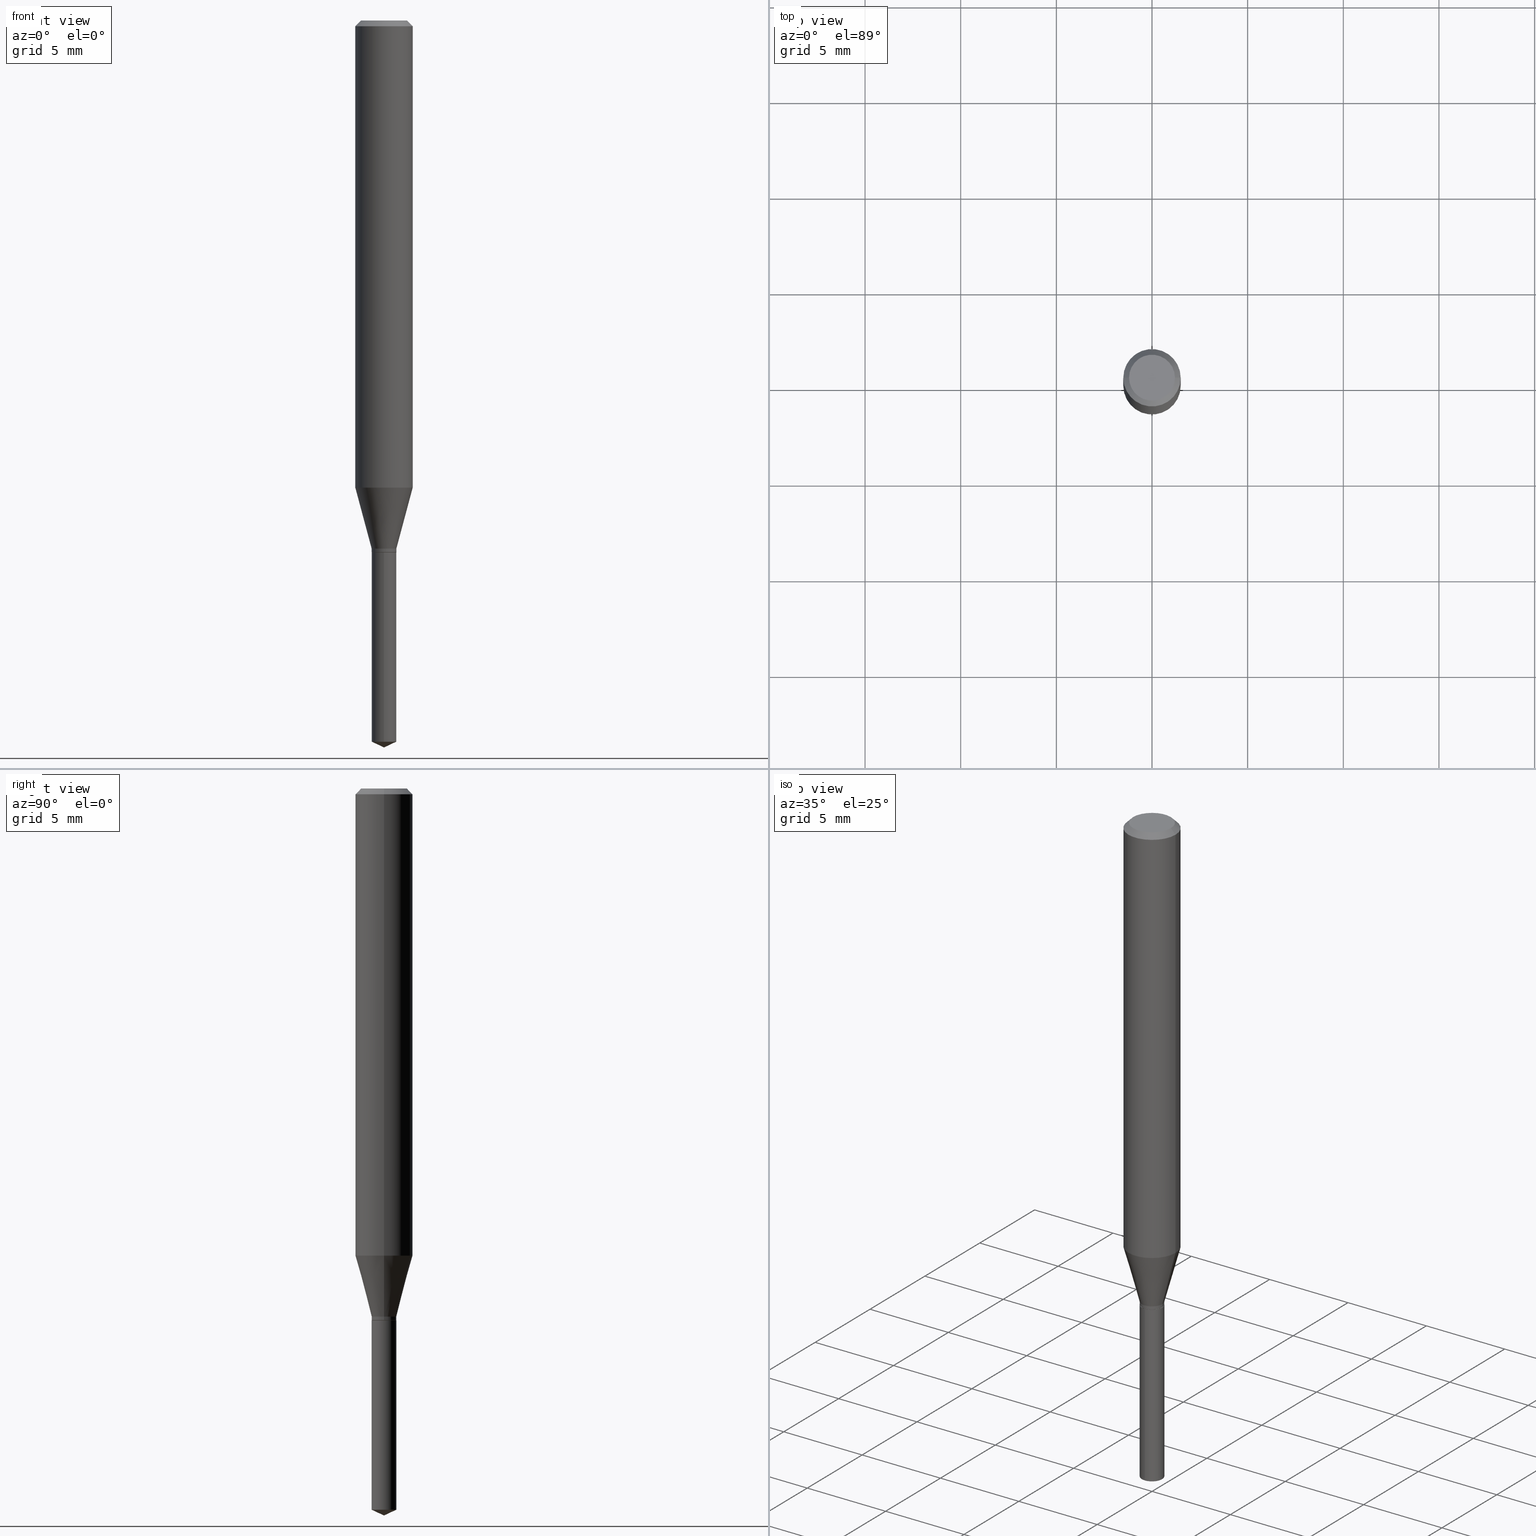
[diagram: canonical four-view strip — front | top / right | iso, engineering-drawing reading convention]
A machine part, canonical four-view strip (front | top / right | iso — engineering-drawing reading convention). The complete STEP part file that produces these views, byte-faithful:
ISO-10303-21;
HEADER;
FILE_DESCRIPTION (( 'STEP AP203' ),
    '1' );
FILE_NAME ('07515.STEP',
    '2024-04-23T22:20:57',
    ( '' ),
    ( '' ),
    'SwSTEP 2.0',
    'SolidWorks 2023',
    '' );
FILE_SCHEMA (( 'CONFIG_CONTROL_DESIGN' ));
ENDSEC;

DATA;
#1 = CARTESIAN_POINT ( 'NONE',  ( 2.676565608369631794E-29, -3.821426325363822773E-15, -1.094499999999999806 ) ) ;
#2 = EDGE_CURVE ( 'NONE', #43, #443, #195, .T. ) ;
#3 = AXIS2_PLACEMENT_3D ( 'NONE', #77, #73, #485 ) ;
#4 = VERTEX_POINT ( 'NONE', #70 ) ;
#5 = CONICAL_SURFACE ( 'NONE', #460, 0.02539999999999999897, 0.2617993877991500740 ) ;
#6 = CARTESIAN_POINT ( 'NONE',  ( -0.02539999999999999897, -3.614413212305549049E-15, -1.086899999999999755 ) ) ;
#7 = EDGE_LOOP ( 'NONE', ( #371, #386, #101, #217 ) ) ;
#8 = CARTESIAN_POINT ( 'NONE',  ( -0.05905000000000006077, 4.195754854663395916E-16, -2.904631170795524694E-30 ) ) ;
#9 = CARTESIAN_POINT ( 'NONE',  ( 2.657980045442624351E-29, -3.794891067188614341E-15, -1.086899999999999755 ) ) ;
#10 = ORIENTED_EDGE ( 'NONE', *, *, #260, .T. ) ;
#11 = EDGE_CURVE ( 'NONE', #392, #338, #190, .T. ) ;
#12 = AXIS2_PLACEMENT_3D ( 'NONE', #208, #277, #426 ) ;
#13 = PLANE ( 'NONE',  #157 ) ;
#14 = FACE_OUTER_BOUND ( 'NONE', #204, .T. ) ;
#15 = CYLINDRICAL_SURFACE ( 'NONE', #487, 0.02539999999999999897 ) ;
#16 = AXIS2_PLACEMENT_3D ( 'NONE', #361, #280, #126 ) ;
#17 = AXIS2_PLACEMENT_3D ( 'NONE', #219, #375, #26 ) ;
#18 = CARTESIAN_POINT ( 'NONE',  ( 0.05905000000000006077, -4.123439461173744764E-16, 2.879382386107503023E-30 ) ) ;
#19 = VERTEX_POINT ( 'NONE', #344 ) ;
#20 = ADVANCED_BREP_SHAPE_REPRESENTATION ( '07515', ( #351, #177, #108 ), #369 ) ;
#21 = CARTESIAN_POINT ( 'NONE',  ( -0.05904999999999999832, 3.711095515056362054E-16, -0.01181000000000007738 ) ) ;
#22 = EDGE_LOOP ( 'NONE', ( #124, #376, #296, #41 ) ) ;
#23 = CYLINDRICAL_SURFACE ( 'NONE', #140, 0.02539999999999999897 ) ;
#24 = ORIENTED_EDGE ( 'NONE', *, *, #235, .T. ) ;
#25 = EDGE_CURVE ( 'NONE', #19, #350, #82, .T. ) ;
#26 = DIRECTION ( 'NONE',  ( 1.000000000000000000, -6.982962677686266711E-15, 4.876176775795935793E-29 ) ) ;
#27 = CIRCLE ( 'NONE', #377, 0.02539999999999999897 ) ;
#28 = EDGE_LOOP ( 'NONE', ( #179, #315, #173, #482 ) ) ;
#29 = CONICAL_SURFACE ( 'NONE', #198, 0.05904999999999999832, 0.7853981633974449483 ) ;
#30 = CALENDAR_DATE ( 2024, 23, 4 ) ;
#31 = CARTESIAN_POINT ( 'NONE',  ( 3.658667988020872822E-29, -5.223602213574301462E-15, -1.496099999999999985 ) ) ;
#32 = UNCERTAINTY_MEASURE_WITH_UNIT (LENGTH_MEASURE( 1.000000000000000082E-05 ), #452, 'distance_accuracy_value', 'NONE');
#33 = APPROVAL_DATE_TIME ( #225, #237 ) ;
#34 = CARTESIAN_POINT ( 'NONE',  ( 0.02539999999999999897, -1.773672520132311721E-16, 1.238548901052167661E-30 ) ) ;
#35 = CC_DESIGN_PERSON_AND_ORGANIZATION_ASSIGNMENT ( #144, #308, ( #337 ) ) ;
#36 = DIRECTION ( 'NONE',  ( -6.982962677686265922E-15, -1.000000000000000000, 0.000000000000000000 ) ) ;
#37 = CIRCLE ( 'NONE', #322, 0.02489999999999999852 ) ;
#38 = ORGANIZATION ( 'UNSPECIFIED', 'UNSPECIFIED', '' ) ;
#39 = DATE_TIME_ROLE ( 'classification_date' ) ;
#40 = CARTESIAN_POINT ( 'NONE',  ( -0.02539999999999999897, -3.626807971058442119E-15, -1.093999999999999861 ) ) ;
#41 = ORIENTED_EDGE ( 'NONE', *, *, #161, .F. ) ;
#42 = DIRECTION ( 'NONE',  ( -2.445468806185136597E-29, 3.491481338843145583E-15, 1.000000000000000000 ) ) ;
#43 = VERTEX_POINT ( 'NONE', #149 ) ;
#44 = FACE_OUTER_BOUND ( 'NONE', #440, .T. ) ;
#45 = APPROVAL_PERSON_ORGANIZATION ( #302, #389, #390 ) ;
#46 = DIRECTION ( 'NONE',  ( -2.438088387897960049E-29, 3.491481338843145188E-15, 1.000000000000000000 ) ) ;
#47 = DIRECTION ( 'NONE',  ( 1.000000000000000000, -6.982962677686266711E-15, 4.876176775795935793E-29 ) ) ;
#48 = EDGE_CURVE ( 'NONE', #303, #272, #360, .T. ) ;
#49 = ORIENTED_EDGE ( 'NONE', *, *, #25, .F. ) ;
#50 = DIRECTION ( 'NONE',  ( 0.2588190451025213501, 1.565188264969621968E-15, 0.9659258262890682012 ) ) ;
#51 = VECTOR ( 'NONE', #247, 39.37007874015748143 ) ;
#52 = VECTOR ( 'NONE', #120, 39.37007874015748143 ) ;
#53 = DIRECTION ( 'NONE',  ( -6.982962677686268288E-15, -1.000000000000000000, 3.520397390770421921E-15 ) ) ;
#54 = EDGE_CURVE ( 'NONE', #43, #398, #442, .T. ) ;
#55 = DIRECTION ( 'NONE',  ( -2.445468806185136597E-29, 3.491481338843145583E-15, 1.000000000000000000 ) ) ;
#56 = DIRECTION ( 'NONE',  ( -2.445468806185136597E-29, 3.491481338843145583E-15, 1.000000000000000000 ) ) ;
#57 = ORIENTED_EDGE ( 'NONE', *, *, #146, .T. ) ;
#58 = AXIS2_PLACEMENT_3D ( 'NONE', #121, #278, #427 ) ;
#59 = CARTESIAN_POINT ( 'NONE',  ( 2.350869489961913671E-29, -3.356418586692996552E-15, -0.9613164903253069715 ) ) ;
#60 = ORIENTED_EDGE ( 'NONE', *, *, #380, .T. ) ;
#61 = DIRECTION ( 'NONE',  ( -0.7071067811865451302, 2.468850131082231817E-15, -0.7071067811865499042 ) ) ;
#62 = EDGE_LOOP ( 'NONE', ( #185, #212, #317, #312 ) ) ;
#63 = ADVANCED_FACE ( 'NONE', ( #314 ), #429, .T. ) ;
#64 = FACE_OUTER_BOUND ( 'NONE', #7, .T. ) ;
#65 = ORIENTED_EDGE ( 'NONE', *, *, #218, .F. ) ;
#66 = CC_DESIGN_PERSON_AND_ORGANIZATION_ASSIGNMENT ( #454, #112, ( #83 ) ) ;
#67 = PERSON_AND_ORGANIZATION_ROLE ( 'creator' ) ;
#68 = LINE ( 'NONE', #224, #51 ) ;
#69 = ADVANCED_FACE ( 'NONE', ( #425 ), #232, .T. ) ;
#70 = CARTESIAN_POINT ( 'NONE',  ( 0.02489999999999999852, -3.995302096038210840E-15, -1.094499999999999806 ) ) ;
#71 = DATE_AND_TIME ( #104, #275 ) ;
#72 = DIRECTION ( 'NONE',  ( -2.445470214571802116E-29, 3.491479321953280158E-15, 1.000000000000000000 ) ) ;
#73 = DIRECTION ( 'NONE',  ( -2.445468806185136597E-29, 3.491481338843145583E-15, 1.000000000000000000 ) ) ;
#74 = AXIS2_PLACEMENT_3D ( 'NONE', #228, #489, #152 ) ;
#75 = ORIENTED_EDGE ( 'NONE', *, *, #91, .T. ) ;
#76 = PERSON_AND_ORGANIZATION ( #191, #38 ) ;
#77 = CARTESIAN_POINT ( 'NONE',  ( 8.265746106709734507E-48, -1.180129479067563789E-33, -3.380025165646692144E-19 ) ) ;
#78 = EDGE_CURVE ( 'NONE', #4, #84, #37, .T. ) ;
#79 = ORIENTED_EDGE ( 'NONE', *, *, #421, .F. ) ;
#80 = LINE ( 'NONE', #163, #166 ) ;
#81 = FACE_OUTER_BOUND ( 'NONE', #468, .T. ) ;
#82 = CIRCLE ( 'NONE', #92, 0.05905000000000011628 ) ;
#83 = PRODUCT_DEFINITION_FORMATION_WITH_SPECIFIED_SOURCE ( 'ANY', '', #337, .NOT_KNOWN. ) ;
#84 = VERTEX_POINT ( 'NONE', #148 ) ;
#85 = DIRECTION ( 'NONE',  ( 1.000000000000000000, -6.982962677686267499E-15, 0.000000000000000000 ) ) ;
#86 = EDGE_CURVE ( 'NONE', #392, #143, #297, .T. ) ;
#87 = ORIENTED_EDGE ( 'NONE', *, *, #335, .T. ) ;
#88 = CYLINDRICAL_SURFACE ( 'NONE', #339, 0.05905000000000006077 ) ;
#89 = ORIENTED_EDGE ( 'NONE', *, *, #475, .F. ) ;
#90 = LINE ( 'NONE', #320, #307 ) ;
#91 = EDGE_CURVE ( 'NONE', #368, #443, #213, .T. ) ;
#92 = AXIS2_PLACEMENT_3D ( 'NONE', #342, #349, #453 ) ;
#93 = AXIS2_PLACEMENT_3D ( 'NONE', #59, #405, #293 ) ;
#94 = CARTESIAN_POINT ( 'NONE',  ( 2.676565608369631794E-29, -3.821426325363822773E-15, -1.094499999999999806 ) ) ;
#95 = CARTESIAN_POINT ( 'NONE',  ( -0.02539999999999999897, 1.804778548830654399E-16, -1.249409512924746078E-30 ) ) ;
#96 = CARTESIAN_POINT ( 'NONE',  ( 8.265746106709734507E-48, -1.180129479067563789E-33, -3.380025165646692144E-19 ) ) ;
#97 = ORIENTED_EDGE ( 'NONE', *, *, #455, .T. ) ;
#98 = CONICAL_SURFACE ( 'NONE', #255, 0.02539999999999999897, 0.2617993877991500740 ) ;
#99 = CARTESIAN_POINT ( 'NONE',  ( -1.773672520132044001E-16, -0.02540000000000381883, -1.094499999999999806 ) ) ;
#100 = EDGE_CURVE ( 'NONE', #398, #43, #107, .T. ) ;
#101 = ORIENTED_EDGE ( 'NONE', *, *, #11, .T. ) ;
#102 = CARTESIAN_POINT ( 'NONE',  ( 0.05904999999999999832, -4.463468013801467941E-16, -0.01181000000000007738 ) ) ;
#103 = ORIENTED_EDGE ( 'NONE', *, *, #78, .F. ) ;
#104 = CALENDAR_DATE ( 2024, 23, 4 ) ;
#105 = DIRECTION ( 'NONE',  ( -2.445468806185136597E-29, 3.491481338843145583E-15, 1.000000000000000000 ) ) ;
#106 = APPROVAL_STATUS ( 'not_yet_approved' ) ;
#107 = CIRCLE ( 'NONE', #486, 0.02539999999999999897 ) ;
#108 = AXIS2_PLACEMENT_3D ( 'NONE', #348, #313, #223 ) ;
#109 = CARTESIAN_POINT ( 'NONE',  ( -0.02489999999999999852, -3.644501184159557591E-15, -1.094499999999999806 ) ) ;
#110 = LOCAL_TIME ( 18, 20, 57.00000000000000000, #304 ) ;
#111 = CARTESIAN_POINT ( 'NONE',  ( 2.676565608369631794E-29, -3.821426325363822773E-15, -1.094499999999999806 ) ) ;
#112 = PERSON_AND_ORGANIZATION_ROLE ( 'design_supplier' ) ;
#113 = DIRECTION ( 'NONE',  ( -6.982962677686265922E-15, -1.000000000000000000, 5.377653530835164164E-15 ) ) ;
#114 = ORIENTED_EDGE ( 'NONE', *, *, #455, .F. ) ;
#115 = PERSON_AND_ORGANIZATION ( #191, #38 ) ;
#116 = DIRECTION ( 'NONE',  ( -2.445470214571802396E-29, 3.491479321953280158E-15, 1.000000000000000000 ) ) ;
#117 = AXIS2_PLACEMENT_3D ( 'NONE', #401, #282, #435 ) ;
#118 = CC_DESIGN_PERSON_AND_ORGANIZATION_ASSIGNMENT ( #115, #67, ( #154 ) ) ;
#119 = CIRCLE ( 'NONE', #93, 0.05905000000000011628 ) ;
#120 = DIRECTION ( 'NONE',  ( -2.445468806185136877E-29, 3.491481338843145188E-15, 1.000000000000000000 ) ) ;
#121 = CARTESIAN_POINT ( 'NONE',  ( 2.676565608369631794E-29, -3.821426325363822773E-15, -1.094499999999999806 ) ) ;
#122 = EDGE_CURVE ( 'NONE', #443, #368, #139, .T. ) ;
#123 = CARTESIAN_POINT ( 'NONE',  ( 0.02539999999999999897, -3.972258319201845415E-15, -1.086899999999999755 ) ) ;
#124 = ORIENTED_EDGE ( 'NONE', *, *, #146, .F. ) ;
#125 = CC_DESIGN_DATE_AND_TIME_ASSIGNMENT ( #71, #182, ( #154 ) ) ;
#126 = DIRECTION ( 'NONE',  ( -1.000000000000000000, 6.982962677686265922E-15, -4.876176775795935793E-29 ) ) ;
#127 = ORIENTED_EDGE ( 'NONE', *, *, #343, .T. ) ;
#128 = DIRECTION ( 'NONE',  ( -2.445470214571802116E-29, 3.491479321953280158E-15, 1.000000000000000000 ) ) ;
#129 = EDGE_CURVE ( 'NONE', #84, #4, #279, .T. ) ;
#130 = CARTESIAN_POINT ( 'NONE',  ( 2.657980045442624351E-29, -3.794891067188614341E-15, -1.086899999999999755 ) ) ;
#131 = AXIS2_PLACEMENT_3D ( 'NONE', #200, #128, #53 ) ;
#132 = VECTOR ( 'NONE', #258, 39.37007874015748143 ) ;
#133 = DIRECTION ( 'NONE',  ( -2.445468806185136877E-29, 3.491481338843145188E-15, 1.000000000000000000 ) ) ;
#134 = FACE_OUTER_BOUND ( 'NONE', #28, .T. ) ;
#135 = EDGE_LOOP ( 'NONE', ( #319, #57, #434, #334 ) ) ;
#136 = ADVANCED_FACE ( 'NONE', ( #391 ), #262, .T. ) ;
#137 = FACE_OUTER_BOUND ( 'NONE', #396, .T. ) ;
#138 = ORIENTED_EDGE ( 'NONE', *, *, #421, .T. ) ;
#139 = CIRCLE ( 'NONE', #422, 0.02539999999999999897 ) ;
#140 = AXIS2_PLACEMENT_3D ( 'NONE', #210, #373, #175 ) ;
#141 = DIRECTION ( 'NONE',  ( 1.000000000000000000, -6.982962677686266711E-15, 4.876176775795935793E-29 ) ) ;
#142 = APPROVAL ( #419, 'UNSPECIFIED' ) ;
#143 = VERTEX_POINT ( 'NONE', #40 ) ;
#144 = PERSON_AND_ORGANIZATION ( #191, #38 ) ;
#145 = VERTEX_POINT ( 'NONE', #31 ) ;
#146 = EDGE_CURVE ( 'NONE', #84, #143, #450, .T. ) ;
#147 = MECHANICAL_CONTEXT ( 'NONE', #365, 'mechanical' ) ;
#148 = CARTESIAN_POINT ( 'NONE',  ( -0.02489999999999999852, -3.641851956985446390E-15, -1.094499999999999806 ) ) ;
#149 = CARTESIAN_POINT ( 'NONE',  ( 1.804778548831017275E-16, 0.02539999999999480867, -1.484255785482863077 ) ) ;
#150 = CC_DESIGN_APPROVAL ( #237, ( #290 ) ) ;
#151 = PERSON_AND_ORGANIZATION_ROLE ( 'creator' ) ;
#152 = DIRECTION ( 'NONE',  ( -6.982962677686265922E-15, -1.000000000000000000, 5.377653530835164164E-15 ) ) ;
#153 = APPROVAL_DATE_TIME ( #457, #389 ) ;
#154 = PRODUCT_DEFINITION ( 'UNKNOWN', '', #83, #159 ) ;
#155 = DIRECTION ( 'NONE',  ( -0.7071067811865232589, 7.493145998870265808E-15, 0.7071067811865715536 ) ) ;
#156 = DIRECTION ( 'NONE',  ( 1.000000000000000000, -6.982962677686267499E-15, 0.000000000000000000 ) ) ;
#157 = AXIS2_PLACEMENT_3D ( 'NONE', #168, #46, #327 ) ;
#158 = EDGE_LOOP ( 'NONE', ( #294, #97, #428, #79 ) ) ;
#159 = DESIGN_CONTEXT ( 'detailed design', #199, 'design' ) ;
#160 = DIRECTION ( 'NONE',  ( -0.2588190451025213501, 5.211531920934551042E-15, 0.9659258262890682012 ) ) ;
#161 = EDGE_CURVE ( 'NONE', #143, #392, #27, .T. ) ;
#162 = VERTEX_POINT ( 'NONE', #414 ) ;
#163 = CARTESIAN_POINT ( 'NONE',  ( 0.02489999999999999852, -3.995302096038210840E-15, -1.094499999999999806 ) ) ;
#164 = DIRECTION ( 'NONE',  ( -2.445468806185136597E-29, 3.491481338843145583E-15, 1.000000000000000000 ) ) ;
#165 = CLOSED_SHELL ( 'NONE', ( #321, #283, #207, #329, #447, #470, #357, #69, #306, #246, #250, #488 ) ) ;
#166 = VECTOR ( 'NONE', #236, 39.37007874015748854 ) ;
#167 = ORIENTED_EDGE ( 'NONE', *, *, #54, .F. ) ;
#168 = CARTESIAN_POINT ( 'NONE',  ( 2.676565608369631794E-29, -3.821426325363822773E-15, -1.094499999999999806 ) ) ;
#169 = CARTESIAN_POINT ( 'NONE',  ( 0.04724000000000000421, -3.852183633974369838E-16, -3.380025165621689721E-19 ) ) ;
#170 = EDGE_CURVE ( 'NONE', #398, #368, #68, .T. ) ;
#171 = CARTESIAN_POINT ( 'NONE',  ( 2.888098660104665518E-31, -4.123439461173782112E-17, -0.01181000000000007738 ) ) ;
#172 = LOCAL_TIME ( 18, 20, 57.00000000000000000, #261 ) ;
#173 = ORIENTED_EDGE ( 'NONE', *, *, #170, .T. ) ;
#174 = ADVANCED_FACE ( 'NONE', ( #323 ), #206, .T. ) ;
#175 = DIRECTION ( 'NONE',  ( -6.982962677686265922E-15, -1.000000000000000000, 5.377653530835164164E-15 ) ) ;
#176 = VERTEX_POINT ( 'NONE', #467 ) ;
#177 = MANIFOLD_SOLID_BREP ( 'Body-Move/Copy2[2]', #165 ) ;
#178 = CARTESIAN_POINT ( 'NONE',  ( 2.657980045442624351E-29, -3.794891067188614341E-15, -1.086899999999999755 ) ) ;
#179 = ORIENTED_EDGE ( 'NONE', *, *, #2, .F. ) ;
#180 = VECTOR ( 'NONE', #50, 39.37007874015747433 ) ;
#181 = VECTOR ( 'NONE', #249, 39.37007874015748143 ) ;
#182 = DATE_TIME_ROLE ( 'creation_date' ) ;
#183 = EDGE_LOOP ( 'NONE', ( #114, #448, #138, #254 ) ) ;
#184 = SECURITY_CLASSIFICATION_LEVEL ( 'unclassified' ) ;
#185 = ORIENTED_EDGE ( 'NONE', *, *, #289, .F. ) ;
#186 = SHAPE_DEFINITION_REPRESENTATION ( #292, #20 ) ;
#187 = DIRECTION ( 'NONE',  ( -2.445468806185136877E-29, 3.491481338843145188E-15, 1.000000000000000000 ) ) ;
#188 = PERSON_AND_ORGANIZATION ( #191, #38 ) ;
#189 = CONICAL_SURFACE ( 'NONE', #58, 0.02489999999999999852, 0.7853981633974141952 ) ;
#190 = LINE ( 'NONE', #34, #221 ) ;
#191 = PERSON ( 'UNSPECIFIED', 'UNSPECIFIED', 'UNSPECIFIED', ('UNSPECIFIED'), ('UNSPECIFIED'), ('UNSPECIFIED') ) ;
#192 = PERSON_AND_ORGANIZATION ( #191, #38 ) ;
#193 = CARTESIAN_POINT ( 'NONE',  ( 2.676565608369631794E-29, -3.821426325363822773E-15, -1.094499999999999806 ) ) ;
#194 = ORIENTED_EDGE ( 'NONE', *, *, #129, .F. ) ;
#195 = LINE ( 'NONE', #384, #248 ) ;
#196 = ORIENTED_EDGE ( 'NONE', *, *, #2, .T. ) ;
#197 = DIRECTION ( 'NONE',  ( 2.445468806185136597E-29, -3.491481338843145583E-15, -1.000000000000000000 ) ) ;
#198 = AXIS2_PLACEMENT_3D ( 'NONE', #393, #197, #355 ) ;
#199 = APPLICATION_CONTEXT ( 'configuration controlled 3d designs of mechanical parts and assemblies' ) ;
#200 = CARTESIAN_POINT ( 'NONE',  ( -9.261968845786000133E-28, 1.322362114038720264E-13, 37.87397874015748300 ) ) ;
#201 = CC_DESIGN_PERSON_AND_ORGANIZATION_ASSIGNMENT ( #387, #151, ( #83 ) ) ;
#202 = FACE_OUTER_BOUND ( 'NONE', #244, .T. ) ;
#203 = DIMENSIONAL_EXPONENTS ( 1.000000000000000000, 0.000000000000000000, 0.000000000000000000, 0.000000000000000000, 0.000000000000000000, 0.000000000000000000, 0.000000000000000000 ) ;
#204 = EDGE_LOOP ( 'NONE', ( #75, #241 ) ) ;
#205 = PLANE ( 'NONE',  #16 ) ;
#206 = CONICAL_SURFACE ( 'NONE', #131, 84.42940631927510253, 1.134464013796319337 ) ;
#207 = ADVANCED_FACE ( 'NONE', ( #44 ), #88, .T. ) ;
#208 = CARTESIAN_POINT ( 'NONE',  ( 2.888098660104665518E-31, -4.123439461173782112E-17, -0.01181000000000007738 ) ) ;
#209 = DIRECTION ( 'NONE',  ( 1.000000000000000000, -6.982962677686267499E-15, 0.000000000000000000 ) ) ;
#210 = CARTESIAN_POINT ( 'NONE',  ( 2.676565608369631794E-29, -3.821426325363822773E-15, -1.094499999999999806 ) ) ;
#211 = ADVANCED_FACE ( 'NONE', ( #14 ), #356, .F. ) ;
#212 = ORIENTED_EDGE ( 'NONE', *, *, #363, .T. ) ;
#213 = CIRCLE ( 'NONE', #74, 0.02539999999999999897 ) ;
#214 = CC_DESIGN_APPROVAL ( #142, ( #83 ) ) ;
#215 = ORIENTED_EDGE ( 'NONE', *, *, #363, .F. ) ;
#216 = CARTESIAN_POINT ( 'NONE',  ( -0.05904999999999999832, -1.279251005186026858E-15, -0.01181000000000007738 ) ) ;
#217 = ORIENTED_EDGE ( 'NONE', *, *, #380, .F. ) ;
#218 = EDGE_CURVE ( 'NONE', #338, #19, #464, .T. ) ;
#219 = CARTESIAN_POINT ( 'NONE',  ( 0.000000000000000000, 0.000000000000000000, 0.000000000000000000 ) ) ;
#220 = ORIENTED_EDGE ( 'NONE', *, *, #170, .F. ) ;
#221 = VECTOR ( 'NONE', #187, 39.37007874015748143 ) ;
#222 = AXIS2_PLACEMENT_3D ( 'NONE', #9, #164, #331 ) ;
#223 = DIRECTION ( 'NONE',  ( 1.000000000000000000, 0.000000000000000000, 0.000000000000000000 ) ) ;
#224 = CARTESIAN_POINT ( 'NONE',  ( -1.773672520132044001E-16, -0.02540000000000381883, -1.094499999999999806 ) ) ;
#225 = DATE_AND_TIME ( #415, #243 ) ;
#226 = DIRECTION ( 'NONE',  ( 1.000000000000000000, -6.982962677686267499E-15, 0.000000000000000000 ) ) ;
#227 = DATE_AND_TIME ( #30, #430 ) ;
#228 = CARTESIAN_POINT ( 'NONE',  ( 2.676565608369631794E-29, -3.821426325363822773E-15, -1.094499999999999806 ) ) ;
#229 = DATE_AND_TIME ( #449, #110 ) ;
#230 = AXIS2_PLACEMENT_3D ( 'NONE', #347, #72, #36 ) ;
#231 = AXIS2_PLACEMENT_3D ( 'NONE', #171, #403, #441 ) ;
#232 = CYLINDRICAL_SURFACE ( 'NONE', #354, 0.05905000000000006077 ) ;
#233 = APPLICATION_PROTOCOL_DEFINITION ( 'international standard', 'config_control_design', 1994, #199 ) ;
#234 = DIRECTION ( 'NONE',  ( 1.000000000000000000, -6.982962677686266711E-15, 4.876176775795935793E-29 ) ) ;
#235 = EDGE_CURVE ( 'NONE', #145, #398, #433, .T. ) ;
#236 = DIRECTION ( 'NONE',  ( 0.7071067811865232589, -2.468850131082003836E-15, 0.7071067811865715536 ) ) ;
#237 = APPROVAL ( #106, 'UNSPECIFIED' ) ;
#238 = VECTOR ( 'NONE', #155, 39.37007874015748854 ) ;
#239 = CARTESIAN_POINT ( 'NONE',  ( 2.657980045442624351E-29, -3.794891067188614341E-15, -1.086899999999999755 ) ) ;
#240 = APPROVAL_PERSON_ORGANIZATION ( #188, #142, #413 ) ;
#241 = ORIENTED_EDGE ( 'NONE', *, *, #122, .T. ) ;
#242 = DIRECTION ( 'NONE',  ( -2.445468806185136597E-29, 3.491481338843145583E-15, 1.000000000000000000 ) ) ;
#243 = LOCAL_TIME ( 18, 20, 57.00000000000000000, #265 ) ;
#244 = EDGE_LOOP ( 'NONE', ( #374, #404 ) ) ;
#245 = CARTESIAN_POINT ( 'NONE',  ( 0.000000000000000000, 0.000000000000000000, 0.000000000000000000 ) ) ;
#246 = ADVANCED_FACE ( 'NONE', ( #202 ), #205, .F. ) ;
#247 = DIRECTION ( 'NONE',  ( -2.445470214571802396E-29, 3.491479321953280158E-15, 1.000000000000000000 ) ) ;
#248 = VECTOR ( 'NONE', #116, 39.37007874015748143 ) ;
#249 = DIRECTION ( 'NONE',  ( -2.445468806185136877E-29, 3.491481338843145188E-15, 1.000000000000000000 ) ) ;
#250 = ADVANCED_FACE ( 'NONE', ( #358 ), #13, .F. ) ;
#251 = CARTESIAN_POINT ( 'NONE',  ( -0.05905000000000011628, -2.936843101226656270E-15, -0.9613164903253069715 ) ) ;
#252 = ORIENTED_EDGE ( 'NONE', *, *, #335, .F. ) ;
#253 = LENGTH_MEASURE_WITH_UNIT ( LENGTH_MEASURE( 0.02539999999999999897 ), #366 );
#254 = ORIENTED_EDGE ( 'NONE', *, *, #406, .T. ) ;
#255 = AXIS2_PLACEMENT_3D ( 'NONE', #239, #242, #85 ) ;
#256 = DIRECTION ( 'NONE',  ( 1.000000000000000000, -6.982962677686267499E-15, 0.000000000000000000 ) ) ;
#257 = ORIENTED_EDGE ( 'NONE', *, *, #372, .F. ) ;
#258 = DIRECTION ( 'NONE',  ( 0.7071067811865451302, -7.319954787623248157E-15, -0.7071067811865499042 ) ) ;
#259 = ORIENTED_EDGE ( 'NONE', *, *, #91, .F. ) ;
#260 = EDGE_CURVE ( 'NONE', #176, #350, #285, .T. ) ;
#261 = COORDINATED_UNIVERSAL_TIME_OFFSET ( 5, 0, .BEHIND. ) ;
#262 = CYLINDRICAL_SURFACE ( 'NONE', #274, 0.02539999999999999897 ) ;
#263 = CLOSED_SHELL ( 'NONE', ( #136, #174, #63, #438, #211 ) ) ;
#264 = AXIS2_PLACEMENT_3D ( 'NONE', #96, #402, #411 ) ;
#265 = COORDINATED_UNIVERSAL_TIME_OFFSET ( 5, 0, .BEHIND. ) ;
#266 = CARTESIAN_POINT ( 'NONE',  ( 2.675342873966538993E-29, -3.819680584694400481E-15, -1.093999999999999861 ) ) ;
#267 = APPLICATION_PROTOCOL_DEFINITION ( 'international standard', 'config_control_design', 1994, #365 ) ;
#268 = EDGE_CURVE ( 'NONE', #145, #43, #90, .T. ) ;
#269 = DIRECTION ( 'NONE',  ( -2.445468806185136597E-29, 3.491481338843145583E-15, 1.000000000000000000 ) ) ;
#270 =( NAMED_UNIT ( * ) PLANE_ANGLE_UNIT ( ) SI_UNIT ( $, .RADIAN. ) );
#271 = DIRECTION ( 'NONE',  ( -2.445470214571802116E-29, 3.491479321953280158E-15, 1.000000000000000000 ) ) ;
#272 = VERTEX_POINT ( 'NONE', #169 ) ;
#273 = COORDINATED_UNIVERSAL_TIME_OFFSET ( 5, 0, .BEHIND. ) ;
#274 = AXIS2_PLACEMENT_3D ( 'NONE', #193, #271, #458 ) ;
#275 = LOCAL_TIME ( 18, 20, 57.00000000000000000, #273 ) ;
#276 = CARTESIAN_POINT ( 'NONE',  ( -9.261968845786000133E-28, 1.322362114038720264E-13, 37.87397874015748300 ) ) ;
#277 = DIRECTION ( 'NONE',  ( 2.445468806185136597E-29, -3.491481338843145583E-15, -1.000000000000000000 ) ) ;
#278 = DIRECTION ( 'NONE',  ( -2.445468806185136597E-29, 3.491481338843145583E-15, 1.000000000000000000 ) ) ;
#279 = CIRCLE ( 'NONE', #400, 0.02489999999999999852 ) ;
#280 = DIRECTION ( 'NONE',  ( 2.438088387897960049E-29, -3.491481338843145188E-15, -1.000000000000000000 ) ) ;
#281 = VECTOR ( 'NONE', #160, 39.37007874015747433 ) ;
#282 = DIRECTION ( 'NONE',  ( 2.445470214571801836E-29, -3.491479321953280158E-15, -1.000000000000000000 ) ) ;
#283 = ADVANCED_FACE ( 'NONE', ( #397 ), #408, .T. ) ;
#284 = ORIENTED_EDGE ( 'NONE', *, *, #86, .T. ) ;
#285 = LINE ( 'NONE', #6, #281 ) ;
#286 = DIRECTION ( 'NONE',  ( -2.445468806185136597E-29, 3.491481338843145583E-15, 1.000000000000000000 ) ) ;
#287 = AXIS2_PLACEMENT_3D ( 'NONE', #276, #418, #309 ) ;
#288 = VECTOR ( 'NONE', #61, 39.37007874015748143 ) ;
#289 = EDGE_CURVE ( 'NONE', #350, #410, #461, .T. ) ;
#290 = SECURITY_CLASSIFICATION ( '', '', #184 ) ;
#291 = APPROVAL_PERSON_ORGANIZATION ( #192, #237, #382 ) ;
#292 = PRODUCT_DEFINITION_SHAPE ( 'NONE', 'NONE',  #154 ) ;
#293 = DIRECTION ( 'NONE',  ( 1.000000000000000000, -6.982962677686266711E-15, 0.000000000000000000 ) ) ;
#294 = ORIENTED_EDGE ( 'NONE', *, *, #462, .F. ) ;
#295 = CARTESIAN_POINT ( 'NONE',  ( 0.02539999999999999897, -3.972258319201845415E-15, -1.086899999999999755 ) ) ;
#296 = ORIENTED_EDGE ( 'NONE', *, *, #299, .T. ) ;
#297 = CIRCLE ( 'NONE', #472, 0.02539999999999999897 ) ;
#298 = CARTESIAN_POINT ( 'NONE',  ( 2.888098660104665518E-31, -4.123439461173782112E-17, -0.01181000000000007738 ) ) ;
#299 = EDGE_CURVE ( 'NONE', #4, #392, #80, .T. ) ;
#300 = EDGE_LOOP ( 'NONE', ( #412, #60, #325, #215 ) ) ;
#301 = CC_DESIGN_SECURITY_CLASSIFICATION ( #290, ( #83 ) ) ;
#302 = PERSON_AND_ORGANIZATION ( #191, #38 ) ;
#303 = VERTEX_POINT ( 'NONE', #318 ) ;
#304 = COORDINATED_UNIVERSAL_TIME_OFFSET ( 5, 0, .BEHIND. ) ;
#305 = CARTESIAN_POINT ( 'NONE',  ( 2.675342873966538993E-29, -3.819680584694400481E-15, -1.093999999999999861 ) ) ;
#306 = ADVANCED_FACE ( 'NONE', ( #431 ), #29, .T. ) ;
#307 = VECTOR ( 'NONE', #469, 39.37007874015748143 ) ;
#308 = PERSON_AND_ORGANIZATION_ROLE ( 'design_owner' ) ;
#309 = DIRECTION ( 'NONE',  ( -6.982962677686268288E-15, -1.000000000000000000, 3.520397390770421921E-15 ) ) ;
#310 = PRODUCT_RELATED_PRODUCT_CATEGORY ( 'detail', '', ( #337 ) ) ;
#311 = DIRECTION ( 'NONE',  ( -2.445468806185136597E-29, 3.491481338843145583E-15, 1.000000000000000000 ) ) ;
#312 = ORIENTED_EDGE ( 'NONE', *, *, #406, .F. ) ;
#313 = DIRECTION ( 'NONE',  ( 0.000000000000000000, 0.000000000000000000, 1.000000000000000000 ) ) ;
#314 = FACE_OUTER_BOUND ( 'NONE', #446, .T. ) ;
#315 = ORIENTED_EDGE ( 'NONE', *, *, #54, .T. ) ;
#316 = DIRECTION ( 'NONE',  ( 1.000000000000000000, -6.982962677686267499E-15, 0.000000000000000000 ) ) ;
#317 = ORIENTED_EDGE ( 'NONE', *, *, #475, .T. ) ;
#318 = CARTESIAN_POINT ( 'NONE',  ( -0.04724000000000000421, 3.504923541997677355E-16, -3.380025165670481712E-19 ) ) ;
#319 = ORIENTED_EDGE ( 'NONE', *, *, #78, .T. ) ;
#320 = CARTESIAN_POINT ( 'NONE',  ( 3.658668015054778287E-29, -5.223602213574301462E-15, -1.496099999999999985 ) ) ;
#321 = ADVANCED_FACE ( 'NONE', ( #463 ), #189, .T. ) ;
#322 = AXIS2_PLACEMENT_3D ( 'NONE', #111, #490, #156 ) ;
#323 = FACE_OUTER_BOUND ( 'NONE', #340, .T. ) ;
#324 = CIRCLE ( 'NONE', #231, 0.05904999999999999832 ) ;
#325 = ORIENTED_EDGE ( 'NONE', *, *, #218, .T. ) ;
#326 = CC_DESIGN_DATE_AND_TIME_ASSIGNMENT ( #229, #39, ( #290 ) ) ;
#327 = DIRECTION ( 'NONE',  ( 1.000000000000000000, -6.982962677686265922E-15, 4.876176775795935793E-29 ) ) ;
#328 = FACE_OUTER_BOUND ( 'NONE', #300, .T. ) ;
#329 = ADVANCED_FACE ( 'NONE', ( #81 ), #98, .T. ) ;
#330 = CARTESIAN_POINT ( 'NONE',  ( 0.02539999999999999897, -3.997047836707632343E-15, -1.093999999999999861 ) ) ;
#331 = DIRECTION ( 'NONE',  ( 1.000000000000000000, -6.982962677686267499E-15, 0.000000000000000000 ) ) ;
#332 = EDGE_LOOP ( 'NONE', ( #103, #194 ) ) ;
#333 = DIRECTION ( 'NONE',  ( -2.445468806185136597E-29, 3.491481338843145583E-15, 1.000000000000000000 ) ) ;
#334 = ORIENTED_EDGE ( 'NONE', *, *, #299, .F. ) ;
#335 = EDGE_CURVE ( 'NONE', #338, #176, #437, .T. ) ;
#336 = DIRECTION ( 'NONE',  ( 1.000000000000000000, -6.982962677686266711E-15, 0.000000000000000000 ) ) ;
#337 = PRODUCT ( '07515', '07515', '', ( #147 ) ) ;
#338 = VERTEX_POINT ( 'NONE', #295 ) ;
#339 = AXIS2_PLACEMENT_3D ( 'NONE', #245, #395, #47 ) ;
#340 = EDGE_LOOP ( 'NONE', ( #359, #481, #423 ) ) ;
#341 = APPROVAL_DATE_TIME ( #227, #142 ) ;
#342 = CARTESIAN_POINT ( 'NONE',  ( 2.350869489961913671E-29, -3.356418586692996552E-15, -0.9613164903253069715 ) ) ;
#343 = EDGE_CURVE ( 'NONE', #143, #176, #478, .T. ) ;
#344 = CARTESIAN_POINT ( 'NONE',  ( 0.05905000000000011628, -3.768762532810371078E-15, -0.9613164903253069715 ) ) ;
#345 = AXIS2_PLACEMENT_3D ( 'NONE', #298, #56, #336 ) ;
#346 = CALENDAR_DATE ( 2024, 23, 4 ) ;
#347 = CARTESIAN_POINT ( 'NONE',  ( 3.629701772725010767E-29, -5.182250590988897137E-15, -1.484255785482863077 ) ) ;
#348 = CARTESIAN_POINT ( 'NONE',  ( 0.000000000000000000, 0.000000000000000000, 0.000000000000000000 ) ) ;
#349 = DIRECTION ( 'NONE',  ( -2.445468806185136597E-29, 3.491481338843145583E-15, 1.000000000000000000 ) ) ;
#350 = VERTEX_POINT ( 'NONE', #251 ) ;
#351 = MANIFOLD_SOLID_BREP ( 'Body-Move/Copy2[1]', #263 ) ;
#352 = DIRECTION ( 'NONE',  ( 1.000000000000000000, -6.982962677686267499E-15, 0.000000000000000000 ) ) ;
#353 = ORIENTED_EDGE ( 'NONE', *, *, #268, .F. ) ;
#354 = AXIS2_PLACEMENT_3D ( 'NONE', #381, #311, #234 ) ;
#355 = DIRECTION ( 'NONE',  ( -1.000000000000000000, 6.982962677686266711E-15, 0.000000000000000000 ) ) ;
#356 = PLANE ( 'NONE',  #117 ) ;
#357 = ADVANCED_FACE ( 'NONE', ( #328 ), #5, .T. ) ;
#358 = FACE_OUTER_BOUND ( 'NONE', #332, .T. ) ;
#359 = ORIENTED_EDGE ( 'NONE', *, *, #235, .F. ) ;
#360 = CIRCLE ( 'NONE', #3, 0.04724000000000000421 ) ;
#361 = CARTESIAN_POINT ( 'NONE',  ( 4.132873053354867254E-48, -5.900647395337818946E-34, -1.690012582823346072E-19 ) ) ;
#362 = VECTOR ( 'NONE', #133, 39.37007874015748143 ) ;
#363 = EDGE_CURVE ( 'NONE', #350, #19, #119, .T. ) ;
#364 = DIRECTION ( 'NONE',  ( -6.328713451373385156E-15, -0.9063077870366507138, 0.4226182617406979425 ) ) ;
#365 = APPLICATION_CONTEXT ( 'configuration controlled 3d designs of mechanical parts and assemblies' ) ;
#366 =( LENGTH_UNIT ( ) NAMED_UNIT ( * ) SI_UNIT ( $, .METRE. ) );
#367 = DIRECTION ( 'NONE',  ( -2.445468806185136597E-29, 3.491481338843145583E-15, 1.000000000000000000 ) ) ;
#368 = VERTEX_POINT ( 'NONE', #99 ) ;
#369 =( GEOMETRIC_REPRESENTATION_CONTEXT ( 3 ) GLOBAL_UNCERTAINTY_ASSIGNED_CONTEXT ( ( #32 ) ) GLOBAL_UNIT_ASSIGNED_CONTEXT ( ( #452, #270, #385 ) ) REPRESENTATION_CONTEXT ( 'NONE', 'WORKASPACE' ) );
#370 = CYLINDRICAL_SURFACE ( 'NONE', #17, 0.02539999999999999897 ) ;
#371 = ORIENTED_EDGE ( 'NONE', *, *, #343, .F. ) ;
#372 = EDGE_CURVE ( 'NONE', #162, #410, #324, .T. ) ;
#373 = DIRECTION ( 'NONE',  ( -2.445470214571802116E-29, 3.491479321953280158E-15, 1.000000000000000000 ) ) ;
#374 = ORIENTED_EDGE ( 'NONE', *, *, #48, .T. ) ;
#375 = DIRECTION ( 'NONE',  ( -2.445468806185136597E-29, 3.491481338843145583E-15, 1.000000000000000000 ) ) ;
#376 = ORIENTED_EDGE ( 'NONE', *, *, #129, .T. ) ;
#377 = AXIS2_PLACEMENT_3D ( 'NONE', #266, #42, #316 ) ;
#378 = CIRCLE ( 'NONE', #473, 0.02539999999999999897 ) ;
#379 = COORDINATED_UNIVERSAL_TIME_OFFSET ( 5, 0, .BEHIND. ) ;
#380 = EDGE_CURVE ( 'NONE', #176, #338, #378, .T. ) ;
#381 = CARTESIAN_POINT ( 'NONE',  ( 0.000000000000000000, 0.000000000000000000, 0.000000000000000000 ) ) ;
#382 = APPROVAL_ROLE ( '' ) ;
#383 = CC_DESIGN_PERSON_AND_ORGANIZATION_ASSIGNMENT ( #76, #483, ( #290 ) ) ;
#384 = CARTESIAN_POINT ( 'NONE',  ( 1.804778548830921625E-16, 0.02539999999999617911, -1.094500000000000028 ) ) ;
#385 =( NAMED_UNIT ( * ) SI_UNIT ( $, .STERADIAN. ) SOLID_ANGLE_UNIT ( ) );
#386 = ORIENTED_EDGE ( 'NONE', *, *, #161, .T. ) ;
#387 = PERSON_AND_ORGANIZATION ( #191, #38 ) ;
#388 = CARTESIAN_POINT ( 'NONE',  ( 3.629701772725010767E-29, -5.182250590988897137E-15, -1.484255785482863077 ) ) ;
#389 = APPROVAL ( #417, 'UNSPECIFIED' ) ;
#390 = APPROVAL_ROLE ( '' ) ;
#391 = FACE_OUTER_BOUND ( 'NONE', #477, .T. ) ;
#392 = VERTEX_POINT ( 'NONE', #330 ) ;
#393 = CARTESIAN_POINT ( 'NONE',  ( 2.888098660104665518E-31, -4.123439461173782112E-17, -0.01181000000000007738 ) ) ;
#394 = CIRCLE ( 'NONE', #264, 0.04724000000000000421 ) ;
#395 = DIRECTION ( 'NONE',  ( -2.445468806185136597E-29, 3.491481338843145583E-15, 1.000000000000000000 ) ) ;
#396 = EDGE_LOOP ( 'NONE', ( #284, #127, #252, #465 ) ) ;
#397 = FACE_OUTER_BOUND ( 'NONE', #158, .T. ) ;
#398 = VERTEX_POINT ( 'NONE', #471 ) ;
#399 = CARTESIAN_POINT ( 'NONE',  ( 3.658664905062460986E-29, -5.223606628546217219E-15, -1.496099999999999985 ) ) ;
#400 = AXIS2_PLACEMENT_3D ( 'NONE', #484, #105, #226 ) ;
#401 = CARTESIAN_POINT ( 'NONE',  ( 2.676565608369631794E-29, -3.821426325363822773E-15, -1.094499999999999806 ) ) ;
#402 = DIRECTION ( 'NONE',  ( -2.445468806185136597E-29, 3.491481338843145583E-15, 1.000000000000000000 ) ) ;
#403 = DIRECTION ( 'NONE',  ( -2.445468806185136597E-29, 3.491481338843145583E-15, 1.000000000000000000 ) ) ;
#404 = ORIENTED_EDGE ( 'NONE', *, *, #462, .T. ) ;
#405 = DIRECTION ( 'NONE',  ( -2.445468806185136597E-29, 3.491481338843145583E-15, 1.000000000000000000 ) ) ;
#406 = EDGE_CURVE ( 'NONE', #410, #162, #444, .T. ) ;
#407 = ORIENTED_EDGE ( 'NONE', *, *, #100, .T. ) ;
#408 = CONICAL_SURFACE ( 'NONE', #12, 0.05904999999999999832, 0.7853981633974449483 ) ;
#409 = DIRECTION ( 'NONE',  ( 1.000000000000000000, -6.982962677686267499E-15, 0.000000000000000000 ) ) ;
#410 = VERTEX_POINT ( 'NONE', #216 ) ;
#411 = DIRECTION ( 'NONE',  ( 1.000000000000000000, -6.982962677686266711E-15, 4.876185090822587894E-29 ) ) ;
#412 = ORIENTED_EDGE ( 'NONE', *, *, #260, .F. ) ;
#413 = APPROVAL_ROLE ( '' ) ;
#414 = CARTESIAN_POINT ( 'NONE',  ( 0.05904999999999999832, -4.535783407291118600E-16, -0.01181000000000007738 ) ) ;
#415 = CALENDAR_DATE ( 2024, 23, 4 ) ;
#416 = DIRECTION ( 'NONE',  ( -2.445470214571802116E-29, 3.491479321953280158E-15, 1.000000000000000000 ) ) ;
#417 = APPROVAL_STATUS ( 'not_yet_approved' ) ;
#418 = DIRECTION ( 'NONE',  ( -2.445470214571802116E-29, 3.491479321953280158E-15, 1.000000000000000000 ) ) ;
#419 = APPROVAL_STATUS ( 'not_yet_approved' ) ;
#420 = DIRECTION ( 'NONE',  ( -2.445470214571802116E-29, 3.491479321953280158E-15, 1.000000000000000000 ) ) ;
#421 = EDGE_CURVE ( 'NONE', #303, #410, #439, .T. ) ;
#422 = AXIS2_PLACEMENT_3D ( 'NONE', #1, #416, #113 ) ;
#423 = ORIENTED_EDGE ( 'NONE', *, *, #100, .F. ) ;
#424 = AXIS2_PLACEMENT_3D ( 'NONE', #94, #55, #209 ) ;
#425 = FACE_OUTER_BOUND ( 'NONE', #62, .T. ) ;
#426 = DIRECTION ( 'NONE',  ( -1.000000000000000000, 6.982962677686266711E-15, 0.000000000000000000 ) ) ;
#427 = DIRECTION ( 'NONE',  ( 1.000000000000000000, -6.982962677686267499E-15, 0.000000000000000000 ) ) ;
#428 = ORIENTED_EDGE ( 'NONE', *, *, #372, .T. ) ;
#429 = CONICAL_SURFACE ( 'NONE', #287, 84.42940631927510253, 1.134464013796319337 ) ;
#430 = LOCAL_TIME ( 18, 20, 57.00000000000000000, #379 ) ;
#431 = FACE_OUTER_BOUND ( 'NONE', #183, .T. ) ;
#432 = ORIENTED_EDGE ( 'NONE', *, *, #289, .T. ) ;
#433 = LINE ( 'NONE', #399, #459 ) ;
#434 = ORIENTED_EDGE ( 'NONE', *, *, #86, .F. ) ;
#435 = DIRECTION ( 'NONE',  ( 6.982962677686265922E-15, 1.000000000000000000, -3.491479321953280158E-15 ) ) ;
#436 = LINE ( 'NONE', #18, #362 ) ;
#437 = CIRCLE ( 'NONE', #222, 0.02539999999999999897 ) ;
#438 = ADVANCED_FACE ( 'NONE', ( #134 ), #23, .T. ) ;
#439 = LINE ( 'NONE', #21, #288 ) ;
#440 = EDGE_LOOP ( 'NONE', ( #479, #432, #257, #89 ) ) ;
#441 = DIRECTION ( 'NONE',  ( 1.000000000000000000, -6.982962677686266711E-15, 0.000000000000000000 ) ) ;
#442 = CIRCLE ( 'NONE', #230, 0.02539999999999999897 ) ;
#443 = VERTEX_POINT ( 'NONE', #476 ) ;
#444 = CIRCLE ( 'NONE', #345, 0.05904999999999999832 ) ;
#445 = LINE ( 'NONE', #102, #132 ) ;
#446 = EDGE_LOOP ( 'NONE', ( #353, #24, #167 ) ) ;
#447 = ADVANCED_FACE ( 'NONE', ( #137 ), #15, .T. ) ;
#448 = ORIENTED_EDGE ( 'NONE', *, *, #48, .F. ) ;
#449 = CALENDAR_DATE ( 2024, 23, 4 ) ;
#450 = LINE ( 'NONE', #109, #238 ) ;
#451 = CC_DESIGN_APPROVAL ( #389, ( #154 ) ) ;
#452 =( CONVERSION_BASED_UNIT ( 'INCH', #253 ) LENGTH_UNIT ( ) NAMED_UNIT ( #203 ) );
#453 = DIRECTION ( 'NONE',  ( 1.000000000000000000, -6.982962677686266711E-15, 0.000000000000000000 ) ) ;
#454 = PERSON_AND_ORGANIZATION ( #191, #38 ) ;
#455 = EDGE_CURVE ( 'NONE', #272, #162, #445, .T. ) ;
#456 = DIRECTION ( 'NONE',  ( -6.982962677686265922E-15, -1.000000000000000000, 0.000000000000000000 ) ) ;
#457 = DATE_AND_TIME ( #346, #172 ) ;
#458 = DIRECTION ( 'NONE',  ( -6.982962677686265922E-15, -1.000000000000000000, 5.377653530835164164E-15 ) ) ;
#459 = VECTOR ( 'NONE', #364, 39.37007874015748143 ) ;
#460 = AXIS2_PLACEMENT_3D ( 'NONE', #130, #286, #409 ) ;
#461 = LINE ( 'NONE', #8, #52 ) ;
#462 = EDGE_CURVE ( 'NONE', #272, #303, #394, .T. ) ;
#463 = FACE_OUTER_BOUND ( 'NONE', #135, .T. ) ;
#464 = LINE ( 'NONE', #123, #180 ) ;
#465 = ORIENTED_EDGE ( 'NONE', *, *, #11, .F. ) ;
#466 = CONICAL_SURFACE ( 'NONE', #424, 0.02489999999999999852, 0.7853981633974141952 ) ;
#467 = CARTESIAN_POINT ( 'NONE',  ( -0.02539999999999999897, -3.626807971058442119E-15, -1.086899999999999755 ) ) ;
#468 = EDGE_LOOP ( 'NONE', ( #87, #10, #49, #65 ) ) ;
#469 = DIRECTION ( 'NONE',  ( 6.439704144417040608E-15, 0.9063077870366536004, 0.4226182617406916142 ) ) ;
#470 = ADVANCED_FACE ( 'NONE', ( #64 ), #370, .T. ) ;
#471 = CARTESIAN_POINT ( 'NONE',  ( -1.773672520131948105E-16, -0.02540000000000517885, -1.484255785482863077 ) ) ;
#472 = AXIS2_PLACEMENT_3D ( 'NONE', #305, #269, #352 ) ;
#473 = AXIS2_PLACEMENT_3D ( 'NONE', #178, #333, #256 ) ;
#474 = FACE_OUTER_BOUND ( 'NONE', #22, .T. ) ;
#475 = EDGE_CURVE ( 'NONE', #19, #162, #436, .T. ) ;
#476 = CARTESIAN_POINT ( 'NONE',  ( 1.804778548831018014E-16, 0.02539999999999617911, -1.094500000000000028 ) ) ;
#477 = EDGE_LOOP ( 'NONE', ( #407, #196, #259, #220 ) ) ;
#478 = LINE ( 'NONE', #95, #181 ) ;
#479 = ORIENTED_EDGE ( 'NONE', *, *, #25, .T. ) ;
#480 = CARTESIAN_POINT ( 'NONE',  ( 0.000000000000000000, 0.000000000000000000, 0.000000000000000000 ) ) ;
#481 = ORIENTED_EDGE ( 'NONE', *, *, #268, .T. ) ;
#482 = ORIENTED_EDGE ( 'NONE', *, *, #122, .F. ) ;
#483 = PERSON_AND_ORGANIZATION_ROLE ( 'classification_officer' ) ;
#484 = CARTESIAN_POINT ( 'NONE',  ( 2.676565608369631794E-29, -3.821426325363822773E-15, -1.094499999999999806 ) ) ;
#485 = DIRECTION ( 'NONE',  ( 1.000000000000000000, -6.982962677686266711E-15, 4.876185090822587894E-29 ) ) ;
#486 = AXIS2_PLACEMENT_3D ( 'NONE', #388, #420, #456 ) ;
#487 = AXIS2_PLACEMENT_3D ( 'NONE', #480, #367, #141 ) ;
#488 = ADVANCED_FACE ( 'NONE', ( #474 ), #466, .T. ) ;
#489 = DIRECTION ( 'NONE',  ( -2.445470214571802116E-29, 3.491479321953280158E-15, 1.000000000000000000 ) ) ;
#490 = DIRECTION ( 'NONE',  ( -2.445468806185136597E-29, 3.491481338843145583E-15, 1.000000000000000000 ) ) ;
ENDSEC;
END-ISO-10303-21;
